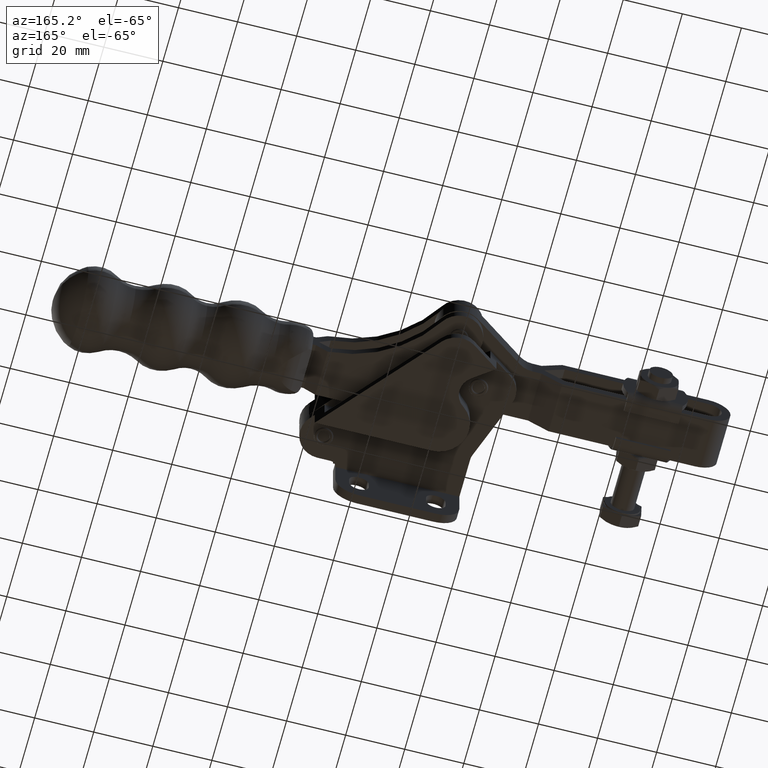
[diagram: clean part render]
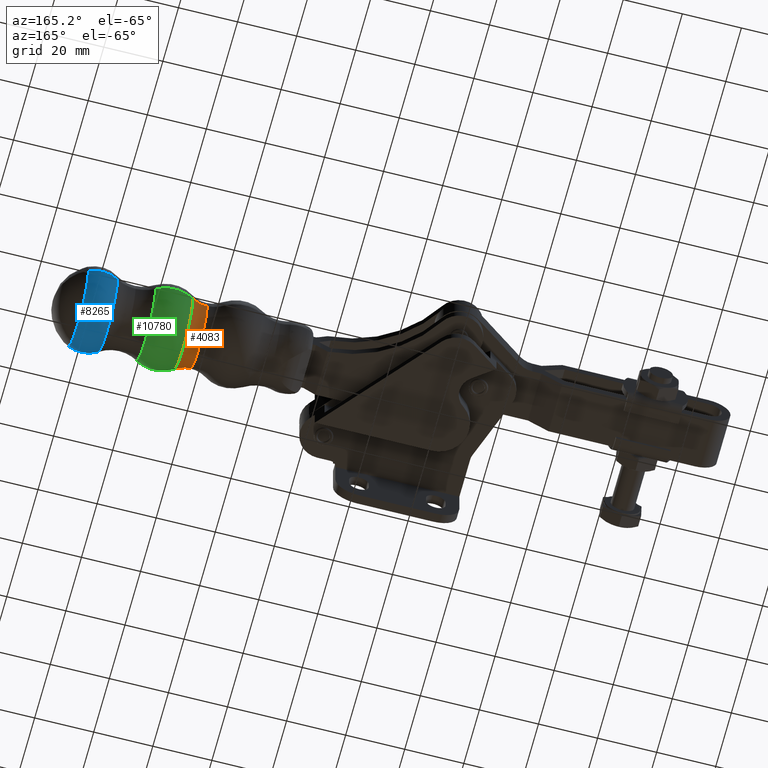
[diagram: same view with three faces highlighted in distinct colors, each labeled with its STEP entity id]
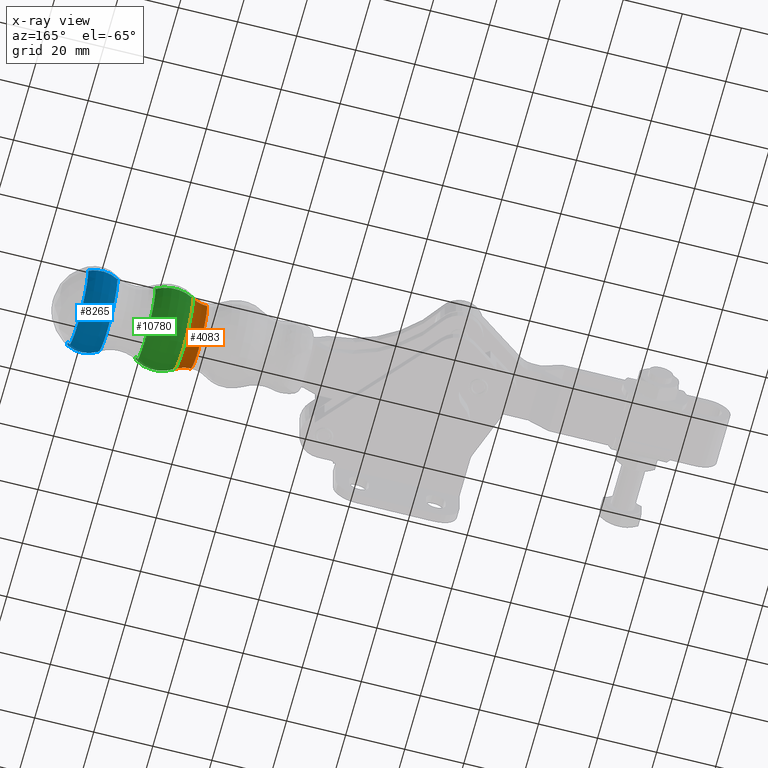
[diagram: x-ray of the same camera — body ghosted, the three highlighted faces saturated]
A machine part, auxiliary view with three faces highlighted in distinct colors.
The next image is the same camera in x-ray (body ghosted, the three faces saturated) — at least one of them is partly hidden behind the body in this view.
Their STEP definitions:

[orange] entity #4083 — the highlighted toroidal blend (fillet) surface has major radius 21.0366 mm and minor (blend) radius 9.9626 mm.
#5 = CARTESIAN_POINT ( 'NONE',  ( 45.42188514801277000, 34.94877964796284400, -2.999999999999731300 ) ) ;
#183 = AXIS2_PLACEMENT_3D ( 'NONE', #7372, #1642, #8326 ) ;
#188 = VERTEX_POINT ( 'NONE', #9172 ) ;
#293 = CARTESIAN_POINT ( 'NONE',  ( 40.20781672309764300, 34.93426567572486600, -2.999999999999731300 ) ) ;
#341 = ORIENTED_EDGE ( 'NONE', *, *, #8404, .T. ) ;
#365 = EDGE_LOOP ( 'NONE', ( #341, #3677, #8520, #11722 ) ) ;
#435 = FACE_OUTER_BOUND ( 'NONE', #365, .T. ) ;
#486 = CARTESIAN_POINT ( 'NONE',  ( 40.23864245904968600, 23.86028166452813100, -2.999999999999730000 ) ) ;
#982 = DIRECTION ( 'NONE',  ( -0.002783606739412951100, 0.9999961257592553400, 0.0000000000000000000 ) ) ;
#1132 = VERTEX_POINT ( 'NONE', #486 ) ;
#1642 = DIRECTION ( 'NONE',  ( 0.9999961257592553400, 0.002783606739412733400, 5.603424691513969200E-022 ) ) ;
#2647 = AXIS2_PLACEMENT_3D ( 'NONE', #2980, #9670, #3939 ) ;
#2980 = CARTESIAN_POINT ( 'NONE',  ( 40.26637441130726800, 13.89772322382954300, -2.999999999999728700 ) ) ;
#3158 = AXIS2_PLACEMENT_3D ( 'NONE', #11445, #5737, #12393 ) ;
#3677 = ORIENTED_EDGE ( 'NONE', *, *, #4767, .T. ) ;
#3939 = DIRECTION ( 'NONE',  ( 0.0000000000000000000, -1.000000000000000000, 1.305927161355849400E-016 ) ) ;
#4083 = ADVANCED_FACE ( 'NONE', ( #435 ), #9428, .F. ) ;
#4124 = AXIS2_PLACEMENT_3D ( 'NONE', #293, #4159, #10838 ) ;
#4159 = DIRECTION ( 'NONE',  ( 0.9999961257592553400, 0.002783606739412733400, 5.603424691513969200E-022 ) ) ;
#4763 = CIRCLE ( 'NONE', #9601, 12.54741789158744000 ) ;
#4767 = EDGE_CURVE ( 'NONE', #1132, #7367, #7756, .T. ) ;
#4903 = EDGE_CURVE ( 'NONE', #12368, #7367, #6308, .T. ) ;
#5434 = CARTESIAN_POINT ( 'NONE',  ( 40.17699098714560800, 46.00824968692159400, -2.999999999999731300 ) ) ;
#5737 = DIRECTION ( 'NONE',  ( 5.601984613625268000E-022, 5.251393111838497400E-023, -1.000000000000000000 ) ) ;
#6308 = CIRCLE ( 'NONE', #3158, 9.962597038197959200 ) ;
#6740 = DIRECTION ( 'NONE',  ( 0.9999961257592553400, 0.002783606739412733400, 5.603424691513969200E-022 ) ) ;
#7367 = VERTEX_POINT ( 'NONE', #5434 ) ;
#7372 = CARTESIAN_POINT ( 'NONE',  ( 40.20781672309764300, 34.93426567572486600, -2.999999999999731300 ) ) ;
#7494 = EDGE_CURVE ( 'NONE', #188, #12368, #4763, .T. ) ;
#7756 = CIRCLE ( 'NONE', #183, 11.07402691464301400 ) ;
#8326 = DIRECTION ( 'NONE',  ( -0.002783606739412939800, 0.9999961257592553400, 0.0000000000000000000 ) ) ;
#8404 = EDGE_CURVE ( 'NONE', #188, #1132, #9798, .T. ) ;
#8520 = ORIENTED_EDGE ( 'NONE', *, *, #4903, .F. ) ;
#9172 = CARTESIAN_POINT ( 'NONE',  ( 45.45681222501802700, 22.40141036809303900, -2.999999999999729500 ) ) ;
#9428 = TOROIDAL_SURFACE ( 'NONE', #4124, 21.03662395284096900, 9.962597038197959200 ) ;
#9601 = AXIS2_PLACEMENT_3D ( 'NONE', #5, #6740, #982 ) ;
#9670 = DIRECTION ( 'NONE',  ( -3.414537068120429100E-019, 1.224641529431514800E-016, 1.000000000000000000 ) ) ;
#9781 = CARTESIAN_POINT ( 'NONE',  ( 45.38695807100752700, 47.49614892783264300, -2.999999999999731300 ) ) ;
#9798 = CIRCLE ( 'NONE', #2647, 9.962597038197959200 ) ;
#10838 = DIRECTION ( 'NONE',  ( -0.002783606739412733400, 0.9999961257592552300, 4.973007147533947500E-038 ) ) ;
#11445 = CARTESIAN_POINT ( 'NONE',  ( 40.14925903488802600, 55.97080812762018800, -2.999999999999731300 ) ) ;
#11722 = ORIENTED_EDGE ( 'NONE', *, *, #7494, .F. ) ;
#12368 = VERTEX_POINT ( 'NONE', #9781 ) ;
#12393 = DIRECTION ( 'NONE',  ( -1.000000000000000000, 0.0000000000000000000, 0.0000000000000000000 ) ) ;

[blue] entity #8265 — the highlighted toroidal blend (fillet) surface has major radius 3.8156 mm and minor (blend) radius 10.5831 mm.
#186 = CIRCLE ( 'NONE', #2814, 12.85660268035231500 ) ;
#203 = AXIS2_PLACEMENT_3D ( 'NONE', #7703, #1961, #8673 ) ;
#594 = CARTESIAN_POINT ( 'NONE',  ( 76.54794529092268400, 38.85101472834504200, -2.999999999999731300 ) ) ;
#807 = DIRECTION ( 'NONE',  ( 0.9999961257592553400, 0.002783606739412733400, 5.603424691513969200E-022 ) ) ;
#1280 = VERTEX_POINT ( 'NONE', #1866 ) ;
#1579 = DIRECTION ( 'NONE',  ( -1.000000000000000000, 0.0000000000000000000, 0.0000000000000000000 ) ) ;
#1837 = CARTESIAN_POINT ( 'NONE',  ( 81.03521657818474500, 48.43572601014227500, -2.999999999999731300 ) ) ;
#1866 = CARTESIAN_POINT ( 'NONE',  ( 71.02169522298368100, 47.87669221801316200, -2.999999999999731300 ) ) ;
#1961 = DIRECTION ( 'NONE',  ( 0.9999961257592553400, 0.002783606739412733400, 5.603424691513969200E-022 ) ) ;
#2145 = DIRECTION ( 'NONE',  ( 0.9999961257592553400, 0.002783606739412733400, 5.603424691513969200E-022 ) ) ;
#2503 = CARTESIAN_POINT ( 'NONE',  ( 71.09327067471765800, 22.16358647645640900, -2.999999999999729500 ) ) ;
#2618 = EDGE_LOOP ( 'NONE', ( #3373, #9516, #11274, #7853 ) ) ;
#2667 = EDGE_CURVE ( 'NONE', #9175, #1280, #186, .T. ) ;
#2814 = AXIS2_PLACEMENT_3D ( 'NONE', #6676, #2145, #12261 ) ;
#3236 = FACE_OUTER_BOUND ( 'NONE', #2618, .T. ) ;
#3373 = ORIENTED_EDGE ( 'NONE', *, *, #4285, .F. ) ;
#3784 = DIRECTION ( 'NONE',  ( -3.414537068120429100E-019, 1.224641529431514800E-016, 1.000000000000000000 ) ) ;
#3806 = VERTEX_POINT ( 'NONE', #9440 ) ;
#4285 = EDGE_CURVE ( 'NONE', #9175, #3806, #10293, .T. ) ;
#6533 = CARTESIAN_POINT ( 'NONE',  ( 76.55856635747441900, 35.03545225941100900, -2.999999999999731300 ) ) ;
#6676 = CARTESIAN_POINT ( 'NONE',  ( 71.05748294885067700, 35.02013934723478200, -2.999999999999731300 ) ) ;
#7114 = AXIS2_PLACEMENT_3D ( 'NONE', #9509, #3784, #10452 ) ;
#7153 = TOROIDAL_SURFACE ( 'NONE', #8024, 3.815577251398884200, 10.58311362316863800 ) ;
#7317 = DIRECTION ( 'NONE',  ( 5.601984613625268000E-022, 5.251393111838497400E-023, -1.000000000000000000 ) ) ;
#7509 = DIRECTION ( 'NONE',  ( -0.002783606739412733000, 0.9999961257592552300, 1.371273760210003900E-037 ) ) ;
#7703 = CARTESIAN_POINT ( 'NONE',  ( 81.07248283881966700, 35.04801727642952600, -2.999999999999731300 ) ) ;
#7853 = ORIENTED_EDGE ( 'NONE', *, *, #12237, .F. ) ;
#8024 = AXIS2_PLACEMENT_3D ( 'NONE', #6533, #807, #7509 ) ;
#8127 = CIRCLE ( 'NONE', #8931, 10.58311362316863200 ) ;
#8265 = ADVANCED_FACE ( 'NONE', ( #3236 ), #7153, .T. ) ;
#8673 = DIRECTION ( 'NONE',  ( -0.002783606739412850100, 0.9999961257592552300, 0.0000000000000000000 ) ) ;
#8931 = AXIS2_PLACEMENT_3D ( 'NONE', #594, #7317, #1579 ) ;
#9175 = VERTEX_POINT ( 'NONE', #2503 ) ;
#9440 = CARTESIAN_POINT ( 'NONE',  ( 81.10974909945458900, 21.66030854271678400, -2.999999999999729500 ) ) ;
#9509 = CARTESIAN_POINT ( 'NONE',  ( 76.56918742402615400, 31.21988979047697700, -2.999999999999730900 ) ) ;
#9516 = ORIENTED_EDGE ( 'NONE', *, *, #2667, .T. ) ;
#9735 = EDGE_CURVE ( 'NONE', #1280, #12198, #8127, .T. ) ;
#10293 = CIRCLE ( 'NONE', #7114, 10.58311362316863900 ) ;
#10452 = DIRECTION ( 'NONE',  ( 0.0000000000000000000, -1.000000000000000000, 1.229357118621831700E-016 ) ) ;
#11274 = ORIENTED_EDGE ( 'NONE', *, *, #9735, .T. ) ;
#12198 = VERTEX_POINT ( 'NONE', #1837 ) ;
#12237 = EDGE_CURVE ( 'NONE', #3806, #12198, #12394, .T. ) ;
#12261 = DIRECTION ( 'NONE',  ( -0.002783606739413235600, 0.9999961257592553400, 0.0000000000000000000 ) ) ;
#12394 = CIRCLE ( 'NONE', #203, 13.38776060112035200 ) ;

[green] entity #10780 — the highlighted toroidal blend (fillet) surface has major radius 1.9747 mm and minor (blend) radius 12.4077 mm.
#5 = CARTESIAN_POINT ( 'NONE',  ( 45.42188514801277000, 34.94877964796284400, -2.999999999999731300 ) ) ;
#85 = EDGE_CURVE ( 'NONE', #8649, #12075, #7695, .T. ) ;
#188 = VERTEX_POINT ( 'NONE', #9172 ) ;
#390 = AXIS2_PLACEMENT_3D ( 'NONE', #8895, #3148, #9836 ) ;
#854 = AXIS2_PLACEMENT_3D ( 'NONE', #10349, #11321, #6781 ) ;
#982 = DIRECTION ( 'NONE',  ( -0.002783606739412951100, 0.9999961257592553400, 0.0000000000000000000 ) ) ;
#1323 = CIRCLE ( 'NONE', #390, 12.40771761688133700 ) ;
#1652 = CARTESIAN_POINT ( 'NONE',  ( 58.09450708719867200, 47.69818578000209200, -2.999999999999731300 ) ) ;
#2249 = EDGE_CURVE ( 'NONE', #188, #8649, #9636, .T. ) ;
#3148 = DIRECTION ( 'NONE',  ( 5.601984613625268000E-022, 5.251393111838497400E-023, -1.000000000000000000 ) ) ;
#3242 = ORIENTED_EDGE ( 'NONE', *, *, #7708, .T. ) ;
#3300 = DIRECTION ( 'NONE',  ( -0.002783606739412733000, 0.9999961257592552300, 8.764958171526370100E-038 ) ) ;
#3430 = DIRECTION ( 'NONE',  ( -3.414537068120429100E-019, 1.224641529431514800E-016, 1.000000000000000000 ) ) ;
#4763 = CIRCLE ( 'NONE', #9601, 12.54741789158744000 ) ;
#5159 = CARTESIAN_POINT ( 'NONE',  ( 51.91564258931003900, 34.96685578497184800, -2.999999999999731300 ) ) ;
#5794 = EDGE_LOOP ( 'NONE', ( #9935, #7518, #3242, #11732 ) ) ;
#5890 = TOROIDAL_SURFACE ( 'NONE', #6411, 1.974705656444808000, 12.40771761688133700 ) ;
#6411 = AXIS2_PLACEMENT_3D ( 'NONE', #5159, #9042, #3300 ) ;
#6740 = DIRECTION ( 'NONE',  ( 0.9999961257592553400, 0.002783606739412733400, 5.603424691513969200E-022 ) ) ;
#6780 = FACE_OUTER_BOUND ( 'NONE', #5794, .T. ) ;
#6781 = DIRECTION ( 'NONE',  ( -0.002783606739412665700, 0.9999961257592551200, 0.0000000000000000000 ) ) ;
#7494 = EDGE_CURVE ( 'NONE', #188, #12368, #4763, .T. ) ;
#7518 = ORIENTED_EDGE ( 'NONE', *, *, #7494, .T. ) ;
#7695 = CIRCLE ( 'NONE', #854, 12.71408114193459900 ) ;
#7708 = EDGE_CURVE ( 'NONE', #12368, #12075, #1323, .T. ) ;
#8649 = VERTEX_POINT ( 'NONE', #10958 ) ;
#8895 = CARTESIAN_POINT ( 'NONE',  ( 51.91014578533639700, 36.94155379093154300, -2.999999999999731300 ) ) ;
#9042 = DIRECTION ( 'NONE',  ( 0.9999961257592553400, 0.002783606739412733400, 5.603424691513969200E-022 ) ) ;
#9172 = CARTESIAN_POINT ( 'NONE',  ( 45.45681222501802700, 22.40141036809303900, -2.999999999999729500 ) ) ;
#9173 = CARTESIAN_POINT ( 'NONE',  ( 51.92113939328367400, 32.99215777901215300, -2.999999999999730900 ) ) ;
#9304 = AXIS2_PLACEMENT_3D ( 'NONE', #9173, #3430, #10111 ) ;
#9601 = AXIS2_PLACEMENT_3D ( 'NONE', #5, #6740, #982 ) ;
#9636 = CIRCLE ( 'NONE', #9304, 12.40771761688133700 ) ;
#9781 = CARTESIAN_POINT ( 'NONE',  ( 45.38695807100752700, 47.49614892783264300, -2.999999999999731300 ) ) ;
#9836 = DIRECTION ( 'NONE',  ( -1.000000000000000000, 0.0000000000000000000, 0.0000000000000000000 ) ) ;
#9935 = ORIENTED_EDGE ( 'NONE', *, *, #2249, .F. ) ;
#10111 = DIRECTION ( 'NONE',  ( 0.0000000000000000000, -1.000000000000000000, 1.398100383600467200E-016 ) ) ;
#10349 = CARTESIAN_POINT ( 'NONE',  ( 58.12989808915079900, 34.98415389547869100, -2.999999999999731300 ) ) ;
#10780 = ADVANCED_FACE ( 'NONE', ( #6780 ), #5890, .T. ) ;
#10958 = CARTESIAN_POINT ( 'NONE',  ( 58.16528909110292700, 22.27012201095528000, -2.999999999999729500 ) ) ;
#11321 = DIRECTION ( 'NONE',  ( 0.9999961257592553400, 0.002783606739412733400, 5.603424691513969200E-022 ) ) ;
#11732 = ORIENTED_EDGE ( 'NONE', *, *, #85, .F. ) ;
#12075 = VERTEX_POINT ( 'NONE', #1652 ) ;
#12368 = VERTEX_POINT ( 'NONE', #9781 ) ;